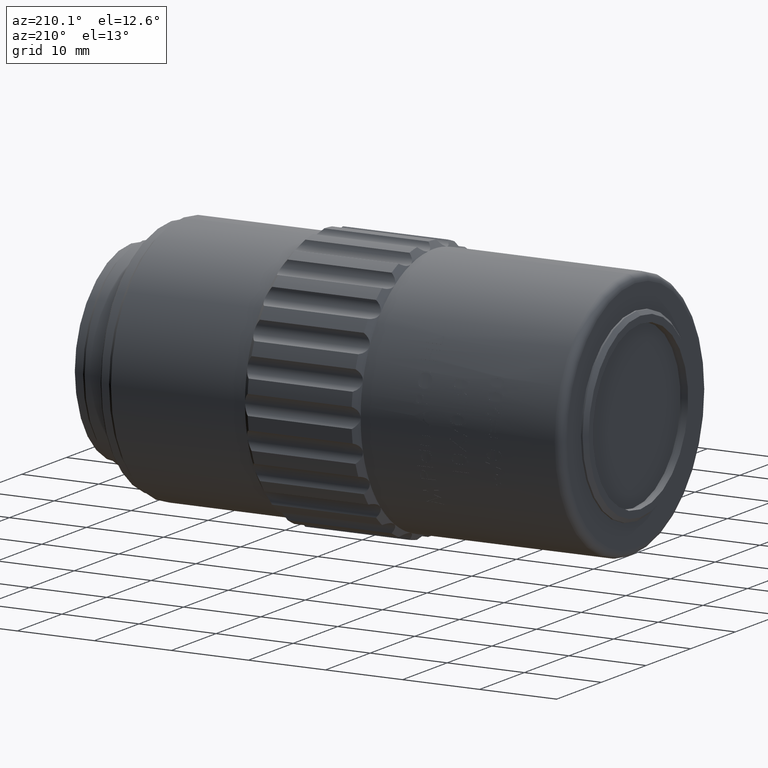
[diagram: clean part render]
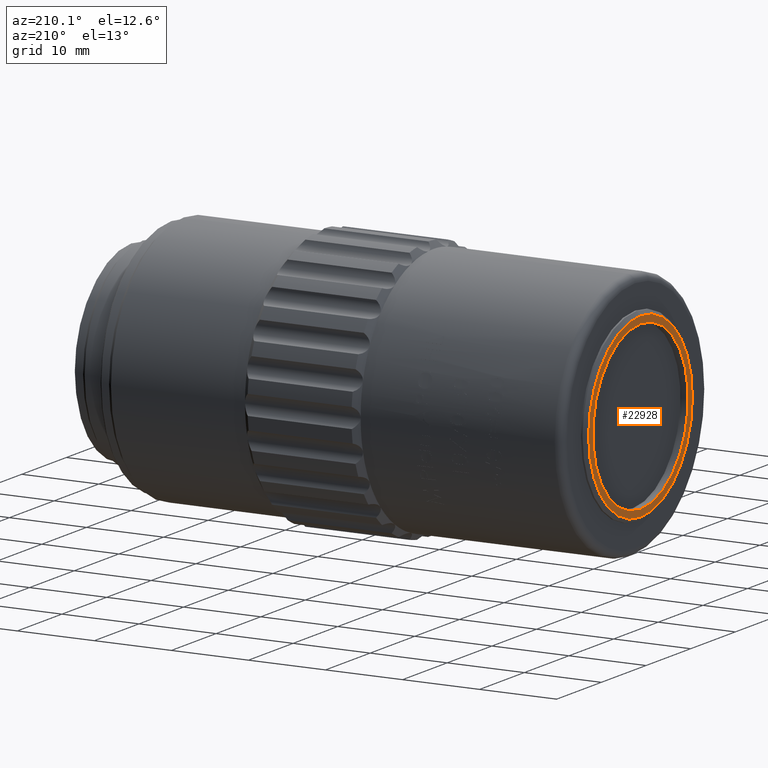
[diagram: same view with one face highlighted and labeled with its STEP entity id]
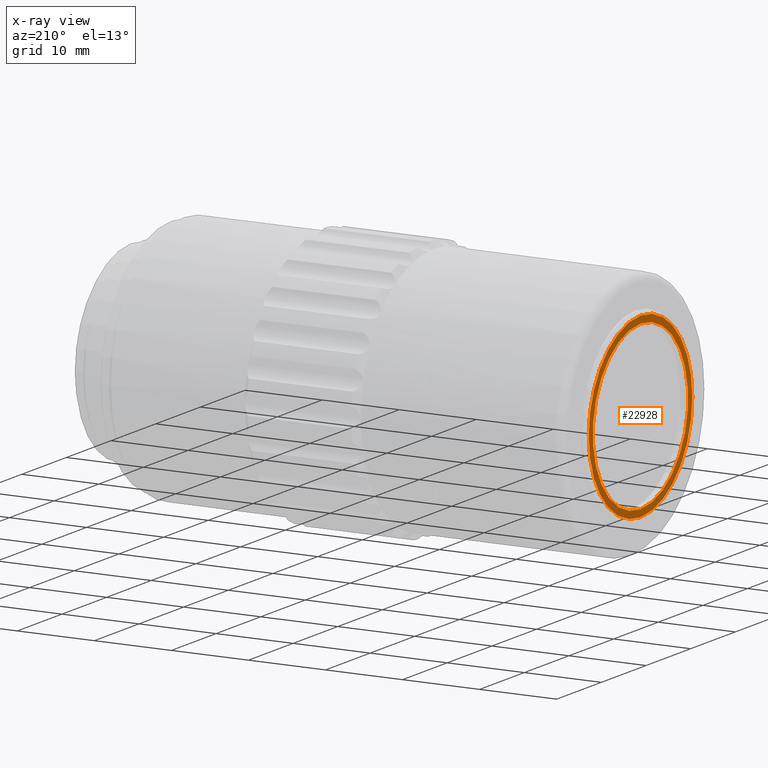
[diagram: x-ray of the same camera — body ghosted, the highlighted face saturated]
A machine part, auxiliary view. The second image highlights one B-rep face of the part: STEP entity #22928.
The next image is the same camera in x-ray: the body ghosted, the highlighted face saturated — about 0% of this face is hidden behind the body in this view.
In plain terms, the highlighted planar face has unit normal (1, 0, 0).
Its self-contained STEP definition (entity closure, byte-faithful):
#116 = DIRECTION ( 'NONE',  ( 0.000000000000000000, 0.000000000000000000, -1.000000000000000000 ) ) ;
#1114 = DIRECTION ( 'NONE',  ( 0.000000000000000000, 0.000000000000000000, -1.000000000000000000 ) ) ;
#1916 = ORIENTED_EDGE ( 'NONE', *, *, #2498, .F. ) ;
#2062 = ORIENTED_EDGE ( 'NONE', *, *, #31505, .F. ) ;
#2449 = FACE_BOUND ( 'NONE', #29168, .T. ) ;
#2498 = EDGE_CURVE ( 'NONE', #31230, #20669, #6742, .T. ) ;
#2863 = ORIENTED_EDGE ( 'NONE', *, *, #27392, .T. ) ;
#3190 = CARTESIAN_POINT ( 'NONE',  ( 33.89999999999999858, 0.000000000000000000, 0.000000000000000000 ) ) ;
#3538 = EDGE_CURVE ( 'NONE', #9696, #30059, #15240, .T. ) ;
#5325 = CARTESIAN_POINT ( 'NONE',  ( 33.89999999999999858, 0.000000000000000000, 0.000000000000000000 ) ) ;
#6631 = CARTESIAN_POINT ( 'NONE',  ( 33.89999999999999858, 1.451206456989614306E-15, 11.60000000000001386 ) ) ;
#6742 = CIRCLE ( 'NONE', #10809, 10.67593321198226874 ) ;
#7396 = PLANE ( 'NONE',  #24475 ) ;
#8296 = CIRCLE ( 'NONE', #22509, 10.67593321198226874 ) ;
#8454 = DIRECTION ( 'NONE',  ( -1.000000000000000000, 0.000000000000000000, 0.000000000000000000 ) ) ;
#9696 = VERTEX_POINT ( 'NONE', #6631 ) ;
#10514 = CARTESIAN_POINT ( 'NONE',  ( 33.89999999999999858, 0.000000000000000000, 0.000000000000000000 ) ) ;
#10809 = AXIS2_PLACEMENT_3D ( 'NONE', #3190, #8454, #20188 ) ;
#11181 = AXIS2_PLACEMENT_3D ( 'NONE', #12209, #19364, #116 ) ;
#11307 = ORIENTED_EDGE ( 'NONE', *, *, #3538, .T. ) ;
#11651 = CARTESIAN_POINT ( 'NONE',  ( 33.89999999999999858, 0.000000000000000000, 10.67593321198226874 ) ) ;
#12209 = CARTESIAN_POINT ( 'NONE',  ( 33.89999999999999858, 0.000000000000000000, 0.000000000000000000 ) ) ;
#13105 = DIRECTION ( 'NONE',  ( 1.000000000000000000, 0.000000000000000000, 0.000000000000000000 ) ) ;
#13378 = DIRECTION ( 'NONE',  ( -1.000000000000000000, -0.000000000000000000, -0.000000000000000000 ) ) ;
#15050 = DIRECTION ( 'NONE',  ( -1.000000000000000000, 0.000000000000000000, 0.000000000000000000 ) ) ;
#15206 = DIRECTION ( 'NONE',  ( 0.000000000000000000, 0.000000000000000000, 1.000000000000000000 ) ) ;
#15240 = CIRCLE ( 'NONE', #11181, 11.60000000000001386 ) ;
#17559 = DIRECTION ( 'NONE',  ( 0.000000000000000000, 0.000000000000000000, -1.000000000000000000 ) ) ;
#19364 = DIRECTION ( 'NONE',  ( -1.000000000000000000, -0.000000000000000000, -0.000000000000000000 ) ) ;
#19465 = FACE_OUTER_BOUND ( 'NONE', #30541, .T. ) ;
#20188 = DIRECTION ( 'NONE',  ( 0.000000000000000000, 0.000000000000000000, 1.000000000000000000 ) ) ;
#20669 = VERTEX_POINT ( 'NONE', #31473 ) ;
#21938 = AXIS2_PLACEMENT_3D ( 'NONE', #10514, #13378, #1114 ) ;
#21957 = CIRCLE ( 'NONE', #21938, 11.60000000000001386 ) ;
#22509 = AXIS2_PLACEMENT_3D ( 'NONE', #29510, #15050, #15206 ) ;
#22928 = ADVANCED_FACE ( 'NONE', ( #2449, #19465 ), #7396, .F. ) ;
#24066 = CARTESIAN_POINT ( 'NONE',  ( 33.89999999999999858, 0.000000000000000000, -11.60000000000001386 ) ) ;
#24475 = AXIS2_PLACEMENT_3D ( 'NONE', #5325, #13105, #17559 ) ;
#27392 = EDGE_CURVE ( 'NONE', #30059, #9696, #21957, .T. ) ;
#29168 = EDGE_LOOP ( 'NONE', ( #1916, #2062 ) ) ;
#29510 = CARTESIAN_POINT ( 'NONE',  ( 33.89999999999999858, 0.000000000000000000, 0.000000000000000000 ) ) ;
#30059 = VERTEX_POINT ( 'NONE', #24066 ) ;
#30541 = EDGE_LOOP ( 'NONE', ( #2863, #11307 ) ) ;
#31230 = VERTEX_POINT ( 'NONE', #11651 ) ;
#31473 = CARTESIAN_POINT ( 'NONE',  ( 33.89999999999999858, 1.307424743596500671E-15, -10.67593321198226874 ) ) ;
#31505 = EDGE_CURVE ( 'NONE', #20669, #31230, #8296, .T. ) ;